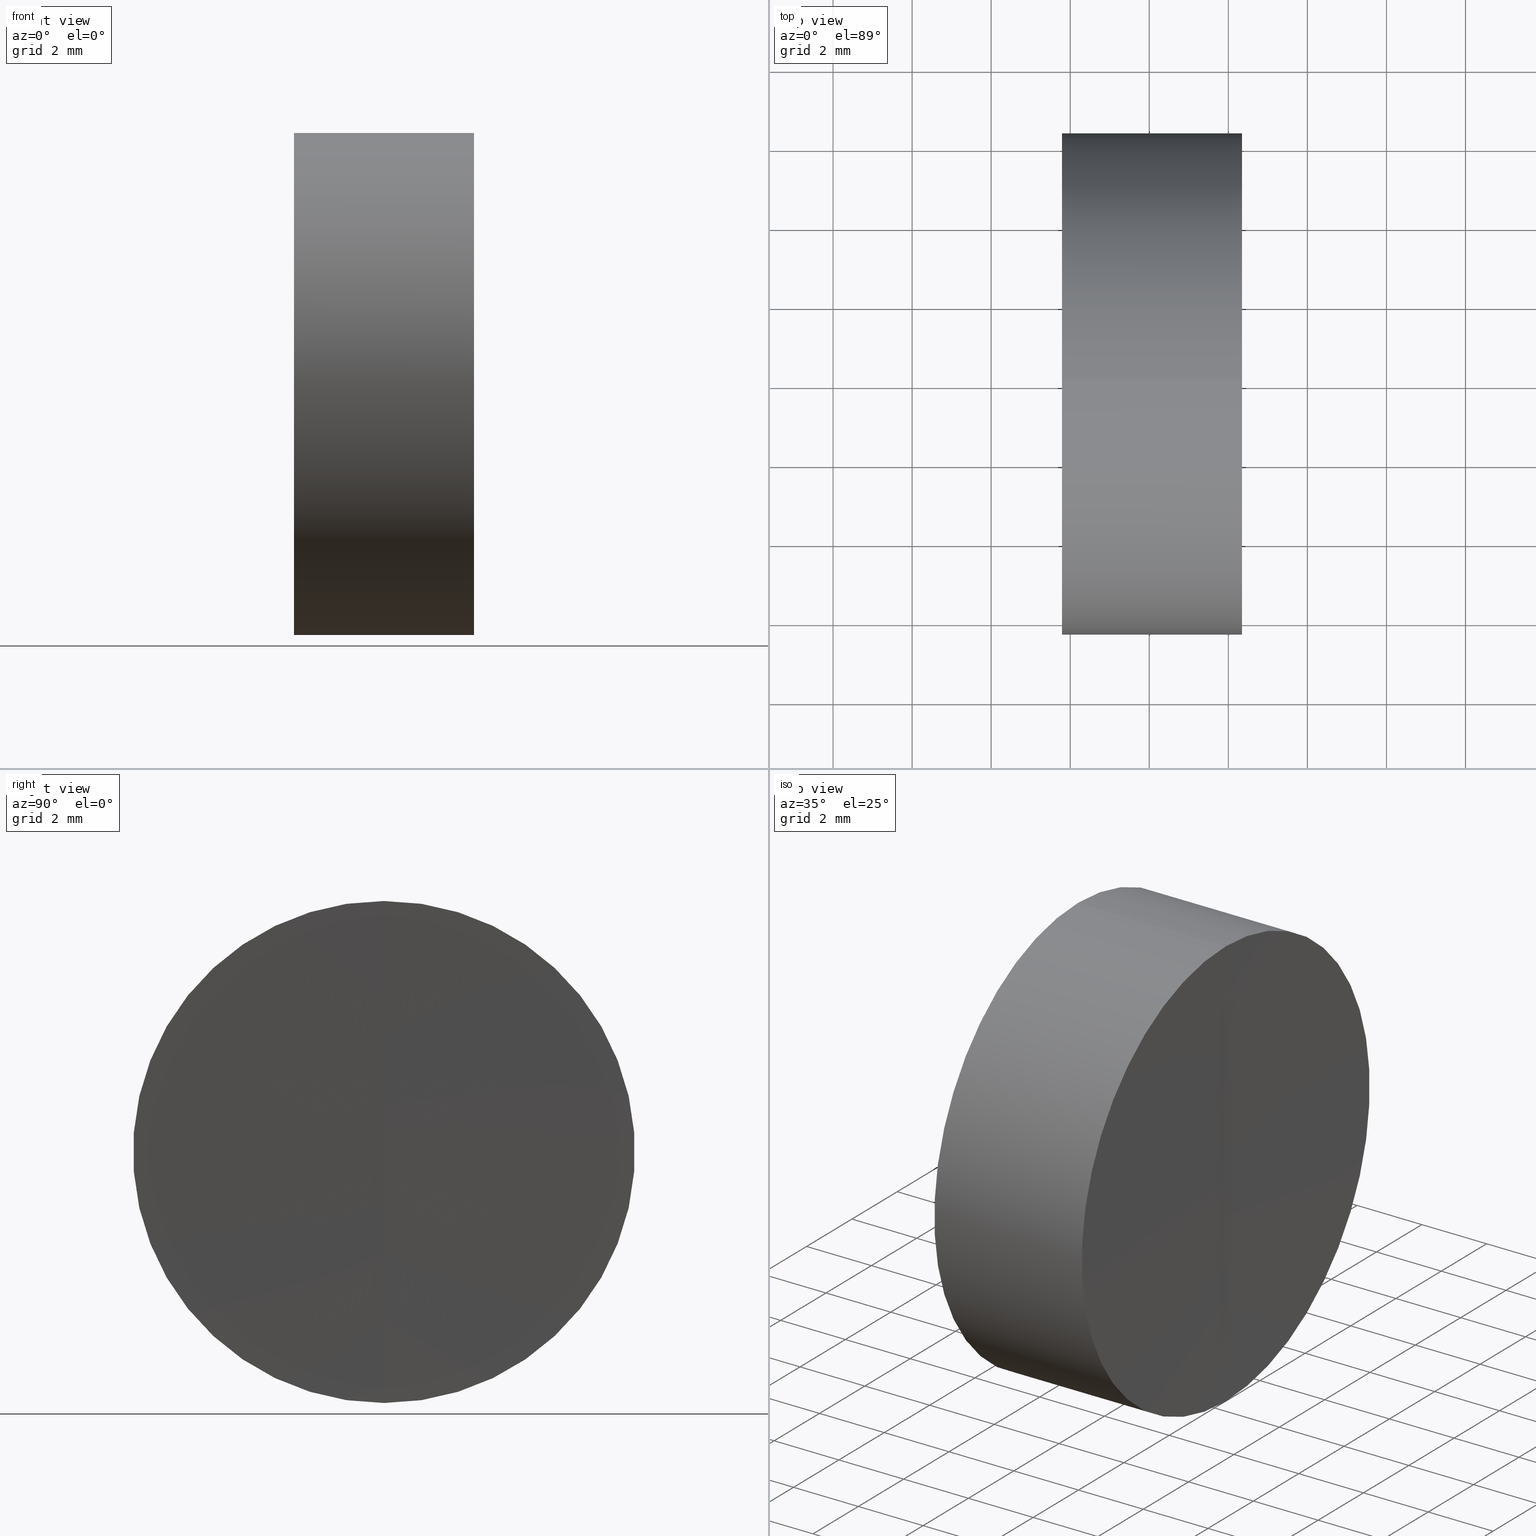
[diagram: canonical four-view strip — front | top / right | iso, engineering-drawing reading convention]
A machine part, canonical four-view strip (front | top / right | iso — engineering-drawing reading convention). The complete STEP part file that produces these views, byte-faithful:
ISO-10303-21;
HEADER;
FILE_DESCRIPTION (( 'STEP AP214' ),
    '1' );
FILE_NAME ('145192.STEP',
    '2019-06-13T05:52:01',
    ( 'user' ),
    ( '΢���й�' ),
    'SwSTEP 2.0',
    'SolidWorks 2016',
    '' );
FILE_SCHEMA (( 'AUTOMOTIVE_DESIGN' ));
ENDSEC;

DATA;
#1 = CARTESIAN_POINT ( 'NONE',  ( 230.3461404943394100, 0.0000000000000000000, 0.0000000000000000000 ) ) ;
#2 = DIRECTION ( 'NONE',  ( 0.0000000000000000000, 0.0000000000000000000, 1.000000000000000000 ) ) ;
#3 = ORIENTED_EDGE ( 'NONE', *, *, #257, .F. ) ;
#4 = LINE ( 'NONE', #68, #142 ) ;
#5 = DIRECTION ( 'NONE',  ( -1.000000000000000000, -0.0000000000000000000, -0.0000000000000000000 ) ) ;
#6 = AXIS2_PLACEMENT_3D ( 'NONE', #179, #145, #95 ) ;
#7 = DIRECTION ( 'NONE',  ( 0.0000000000000000000, -1.224646799147353200E-016, 1.000000000000000000 ) ) ;
#8 = PRESENTATION_STYLE_ASSIGNMENT (( #261 ) ) ;
#9 = VERTEX_POINT ( 'NONE', #151 ) ;
#10 = DIRECTION ( 'NONE',  ( 0.0000000000000000000, 0.0000000000000000000, -1.000000000000000000 ) ) ;
#11 =( LENGTH_UNIT ( ) NAMED_UNIT ( * ) SI_UNIT ( .MILLI., .METRE. ) );
#12 = CARTESIAN_POINT ( 'NONE',  ( 225.7919910479895400, 7.776507174585693100E-016, -6.350000000000000500 ) ) ;
#13 = AXIS2_PLACEMENT_3D ( 'NONE', #121, #16, #183 ) ;
#14 = DIRECTION ( 'NONE',  ( 0.0000000000000000000, 1.224646799147353000E-016, -1.000000000000000000 ) ) ;
#15 = DIRECTION ( 'NONE',  ( -1.000000000000000000, -0.0000000000000000000, 1.836970198721029700E-016 ) ) ;
#16 = DIRECTION ( 'NONE',  ( -0.0000000000000000000, 1.000000000000000000, 0.0000000000000000000 ) ) ;
#17 = ORIENTED_EDGE ( 'NONE', *, *, #71, .F. ) ;
#18 = CIRCLE ( 'NONE', #313, 6.350000000000041400 ) ;
#19 = CARTESIAN_POINT ( 'NONE',  ( 230.3461404943394100, 7.776507174585693100E-016, -6.349999999999999600 ) ) ;
#20 = EDGE_CURVE ( 'NONE', #157, #259, #55, .T. ) ;
#21 = EDGE_CURVE ( 'NONE', #259, #157, #195, .T. ) ;
#22 = FACE_OUTER_BOUND ( 'NONE', #28, .T. ) ;
#23 = VERTEX_POINT ( 'NONE', #173 ) ;
#24 = SPHERICAL_SURFACE ( 'NONE', #74, 372.6999999999999900 ) ;
#25 = STYLED_ITEM ( 'NONE', ( #301 ), #345 ) ;
#26 = ORIENTED_EDGE ( 'NONE', *, *, #317, .F. ) ;
#27 = AXIS2_PLACEMENT_3D ( 'NONE', #268, #120, #103 ) ;
#28 = EDGE_LOOP ( 'NONE', ( #127, #89, #242 ) ) ;
#29 = CARTESIAN_POINT ( 'NONE',  ( 226.5920414512665400, 0.0000000000000000000, -3.135096722806400500E-015 ) ) ;
#30 = EDGE_LOOP ( 'NONE', ( #164, #201, #165 ) ) ;
#31 = CARTESIAN_POINT ( 'NONE',  ( 228.0920414512665700, 0.0000000000000000000, 1.567546985920209400E-015 ) ) ;
#32 = CARTESIAN_POINT ( 'NONE',  ( 253.6920414512665600, 0.0000000000000000000, -9.169884016334362900E-022 ) ) ;
#33 = DIRECTION ( 'NONE',  ( 1.878145495644168800E-016, 0.0000000000000000000, 1.000000000000000000 ) ) ;
#34 = FILL_AREA_STYLE ('',( #35 ) ) ;
#35 = FILL_AREA_STYLE_COLOUR ( '', #216 ) ;
#36 = PRODUCT ( '145192', '145192', '', ( #288 ) ) ;
#37 = SPHERICAL_SURFACE ( 'NONE', #6, 25.59999999999998400 ) ;
#38 = ORIENTED_EDGE ( 'NONE', *, *, #329, .T. ) ;
#39 = CARTESIAN_POINT ( 'NONE',  ( 602.9920414512665700, 0.0000000000000000000, 0.0000000000000000000 ) ) ;
#40 = CIRCLE ( 'NONE', #171, 25.60000000000001900 ) ;
#41 = AXIS2_PLACEMENT_3D ( 'NONE', #298, #122, #33 ) ;
#42 = PRODUCT_DEFINITION_CONTEXT ( 'detailed design', #133, 'design' ) ;
#43 = DIRECTION ( 'NONE',  ( 0.0000000000000000000, 0.0000000000000000000, 1.000000000000000000 ) ) ;
#44 = DIRECTION ( 'NONE',  ( 0.0000000000000000000, 0.0000000000000000000, 1.000000000000000000 ) ) ;
#45 = DIRECTION ( 'NONE',  ( -1.000000000000000000, -0.0000000000000000000, -0.0000000000000000000 ) ) ;
#46 = DIRECTION ( 'NONE',  ( 0.0000000000000000000, 0.0000000000000000000, -1.000000000000000000 ) ) ;
#47 = CARTESIAN_POINT ( 'NONE',  ( 228.8920918545435900, 7.776507174585745400E-016, -6.350000000000084900 ) ) ;
#48 = ORIENTED_EDGE ( 'NONE', *, *, #194, .T. ) ;
#49 = AXIS2_PLACEMENT_3D ( 'NONE', #167, #159, #113 ) ;
#50 = AXIS2_PLACEMENT_3D ( 'NONE', #326, #140, #10 ) ;
#51 = ORIENTED_EDGE ( 'NONE', *, *, #20, .F. ) ;
#52 = AXIS2_PLACEMENT_3D ( 'NONE', #300, #119, #271 ) ;
#53 = ADVANCED_FACE ( 'NONE', ( #246 ), #233, .F. ) ;
#54 = EDGE_LOOP ( 'NONE', ( #26, #169, #181 ) ) ;
#55 = CIRCLE ( 'NONE', #309, 6.349999999999999600 ) ;
#56 = APPLICATION_CONTEXT ( 'automotive_design' ) ;
#57 = CARTESIAN_POINT ( 'NONE',  ( 253.6920414512665600, 0.0000000000000000000, -9.169884016334362900E-022 ) ) ;
#58 = EDGE_LOOP ( 'NONE', ( #51, #108, #137 ) ) ;
#59 = FACE_OUTER_BOUND ( 'NONE', #78, .T. ) ;
#60 = SURFACE_STYLE_USAGE ( .BOTH. , #244 ) ;
#61 = CIRCLE ( 'NONE', #112, 25.59999999999999100 ) ;
#62 = EDGE_CURVE ( 'NONE', #262, #322, #4, .T. ) ;
#63 = CARTESIAN_POINT ( 'NONE',  ( 228.8920918545435900, 0.0000000000000000000, 0.0000000000000000000 ) ) ;
#64 = CARTESIAN_POINT ( 'NONE',  ( 225.7919910479895400, 7.776507174585746400E-016, -6.350000000000048500 ) ) ;
#65 = FILL_AREA_STYLE_COLOUR ( '', #239 ) ;
#66 = CARTESIAN_POINT ( 'NONE',  ( 602.9920414512665700, 0.0000000000000000000, 0.0000000000000000000 ) ) ;
#67 = ORIENTED_EDGE ( 'NONE', *, *, #98, .F. ) ;
#68 = CARTESIAN_POINT ( 'NONE',  ( -0.8160621761658051200, 7.776507174585743400E-016, -6.350000000000041400 ) ) ;
#69 = DIRECTION ( 'NONE',  ( -0.0000000000000000000, 1.000000000000000000, 1.224646799147353200E-016 ) ) ;
#70 = DIRECTION ( 'NONE',  ( -0.0000000000000000000, -1.000000000000000000, -0.0000000000000000000 ) ) ;
#71 = EDGE_CURVE ( 'NONE', #259, #9, #323, .T. ) ;
#72 = SURFACE_STYLE_FILL_AREA ( #34 ) ;
#73 = CIRCLE ( 'NONE', #198, 6.350000000000001400 ) ;
#74 = AXIS2_PLACEMENT_3D ( 'NONE', #203, #292, #250 ) ;
#75 = MANIFOLD_SOLID_BREP ( '��ת3', #347 ) ;
#76 = ORIENTED_EDGE ( 'NONE', *, *, #267, .F. ) ;
#77 = SPHERICAL_SURFACE ( 'NONE', #279, 25.60000000000001900 ) ;
#78 = EDGE_LOOP ( 'NONE', ( #232, #269, #147, #97 ) ) ;
#79 = SURFACE_SIDE_STYLE ('',( #241 ) ) ;
#80 = PRODUCT_DEFINITION ( 'δ֪', '', #254, #42 ) ;
#81 =( LENGTH_UNIT ( ) NAMED_UNIT ( * ) SI_UNIT ( .MILLI., .METRE. ) );
#82 =( GEOMETRIC_REPRESENTATION_CONTEXT ( 3 ) GLOBAL_UNCERTAINTY_ASSIGNED_CONTEXT ( ( #163 ) ) GLOBAL_UNIT_ASSIGNED_CONTEXT ( ( #154, #335, #253 ) ) REPRESENTATION_CONTEXT ( 'NONE', 'WORKASPACE' ) );
#83 = DIRECTION ( 'NONE',  ( 0.0000000000000000000, 1.224646799147353200E-016, -1.000000000000000000 ) ) ;
#84 = ORIENTED_EDGE ( 'NONE', *, *, #238, .F. ) ;
#85 = FACE_OUTER_BOUND ( 'NONE', #204, .T. ) ;
#86 = CARTESIAN_POINT ( 'NONE',  ( 200.9920414512665400, 0.0000000000000000000, -9.169891744871357800E-022 ) ) ;
#87 = APPLICATION_PROTOCOL_DEFINITION ( 'draft international standard', 'automotive_design', 1998, #56 ) ;
#88 = CARTESIAN_POINT ( 'NONE',  ( 225.7919910479895400, 0.0000000000000000000, -4.162722405629622800E-014 ) ) ;
#89 = ORIENTED_EDGE ( 'NONE', *, *, #267, .T. ) ;
#90 = SURFACE_STYLE_FILL_AREA ( #172 ) ;
#91 = DIRECTION ( 'NONE',  ( -1.000000000000000000, -0.0000000000000000000, 1.836970198721029700E-016 ) ) ;
#92 = AXIS2_PLACEMENT_3D ( 'NONE', #102, #70, #46 ) ;
#93 =( NAMED_UNIT ( * ) PLANE_ANGLE_UNIT ( ) SI_UNIT ( $, .RADIAN. ) );
#94 = CARTESIAN_POINT ( 'NONE',  ( -0.8160621761658027900, 0.0000000000000000000, 6.350000000000041400 ) ) ;
#95 = DIRECTION ( 'NONE',  ( 0.0000000000000000000, 0.0000000000000000000, 1.000000000000000000 ) ) ;
#96 = CARTESIAN_POINT ( 'NONE',  ( 230.3461404943394100, 0.0000000000000000000, 6.349999999999999600 ) ) ;
#97 = ORIENTED_EDGE ( 'NONE', *, *, #214, .F. ) ;
#98 = EDGE_CURVE ( 'NONE', #262, #162, #210, .T. ) ;
#99 = ORIENTED_EDGE ( 'NONE', *, *, #21, .T. ) ;
#100 = DIRECTION ( 'NONE',  ( 0.0000000000000000000, 1.000000000000000000, 0.0000000000000000000 ) ) ;
#101 =( GEOMETRIC_REPRESENTATION_CONTEXT ( 3 ) GLOBAL_UNCERTAINTY_ASSIGNED_CONTEXT ( ( #124 ) ) GLOBAL_UNIT_ASSIGNED_CONTEXT ( ( #270, #93, #297 ) ) REPRESENTATION_CONTEXT ( 'NONE', 'WORKASPACE' ) );
#102 = CARTESIAN_POINT ( 'NONE',  ( 602.9920414512665700, 0.0000000000000000000, 0.0000000000000000000 ) ) ;
#103 = DIRECTION ( 'NONE',  ( 1.878145495644168800E-016, 0.0000000000000000000, 1.000000000000000000 ) ) ;
#104 = SPHERICAL_SURFACE ( 'NONE', #188, 25.59999999999999100 ) ;
#105 = EDGE_CURVE ( 'NONE', #226, #322, #40, .T. ) ;
#106 = LINE ( 'NONE', #200, #283 ) ;
#107 = ADVANCED_FACE ( 'NONE', ( #59 ), #265, .T. ) ;
#108 = ORIENTED_EDGE ( 'NONE', *, *, #317, .T. ) ;
#109 = AXIS2_PLACEMENT_3D ( 'NONE', #251, #69, #227 ) ;
#110 = ORIENTED_EDGE ( 'NONE', *, *, #62, .F. ) ;
#111 = EDGE_LOOP ( 'NONE', ( #129, #223, #280 ) ) ;
#112 = AXIS2_PLACEMENT_3D ( 'NONE', #321, #247, #83 ) ;
#113 = DIRECTION ( 'NONE',  ( 1.000000000000000000, 0.0000000000000000000, 0.0000000000000000000 ) ) ;
#114 = SPHERICAL_SURFACE ( 'NONE', #13, 25.60000000000001900 ) ;
#115 = PRESENTATION_STYLE_ASSIGNMENT (( #266 ) ) ;
#116 = DIRECTION ( 'NONE',  ( 0.0000000000000000000, 0.0000000000000000000, 1.000000000000000000 ) ) ;
#117 = CIRCLE ( 'NONE', #143, 372.6999999999999900 ) ;
#118 = MECHANICAL_DESIGN_GEOMETRIC_PRESENTATION_REPRESENTATION (  '', ( #25 ), #101 ) ;
#119 = DIRECTION ( 'NONE',  ( 0.0000000000000000000, -1.000000000000000000, 0.0000000000000000000 ) ) ;
#120 = DIRECTION ( 'NONE',  ( -1.000000000000000000, -0.0000000000000000000, 1.836970198721029700E-016 ) ) ;
#121 = CARTESIAN_POINT ( 'NONE',  ( 200.9920414512665400, 0.0000000000000000000, -9.169891744871357800E-022 ) ) ;
#122 = DIRECTION ( 'NONE',  ( -1.000000000000000000, -0.0000000000000000000, 1.836970198721029700E-016 ) ) ;
#123 = CIRCLE ( 'NONE', #290, 6.350000000000041400 ) ;
#124 = UNCERTAINTY_MEASURE_WITH_UNIT (LENGTH_MEASURE( 1.000000000000000100E-005 ), #270, 'distance_accuracy_value', 'NONE');
#125 = EDGE_CURVE ( 'NONE', #141, #322, #18, .T. ) ;
#126 = DIRECTION ( 'NONE',  ( -0.0000000000000000000, -1.000000000000000000, -0.0000000000000000000 ) ) ;
#127 = ORIENTED_EDGE ( 'NONE', *, *, #190, .T. ) ;
#128 = SHAPE_DEFINITION_REPRESENTATION ( #168, #230 ) ;
#129 = ORIENTED_EDGE ( 'NONE', *, *, #131, .F. ) ;
#130 = FACE_OUTER_BOUND ( 'NONE', #30, .T. ) ;
#131 = EDGE_CURVE ( 'NONE', #304, #162, #61, .T. ) ;
#132 = EDGE_LOOP ( 'NONE', ( #17, #99, #334, #276 ) ) ;
#133 = APPLICATION_CONTEXT ( 'automotive_design' ) ;
#134 = DIRECTION ( 'NONE',  ( 0.0000000000000000000, 0.0000000000000000000, 1.000000000000000000 ) ) ;
#135 = PRODUCT_RELATED_PRODUCT_CATEGORY ( 'part', '', ( #36 ) ) ;
#136 = FACE_OUTER_BOUND ( 'NONE', #197, .T. ) ;
#137 = ORIENTED_EDGE ( 'NONE', *, *, #285, .F. ) ;
#138 = CYLINDRICAL_SURFACE ( 'NONE', #27, 6.350000000000041400 ) ;
#139 = SURFACE_SIDE_STYLE ('',( #90 ) ) ;
#140 = DIRECTION ( 'NONE',  ( 0.0000000000000000000, -1.000000000000000000, 0.0000000000000000000 ) ) ;
#141 = VERTEX_POINT ( 'NONE', #248 ) ;
#142 = VECTOR ( 'NONE', #205, 1000.000000000000000 ) ;
#143 = AXIS2_PLACEMENT_3D ( 'NONE', #66, #225, #44 ) ;
#144 =( NAMED_UNIT ( * ) PLANE_ANGLE_UNIT ( ) SI_UNIT ( $, .RADIAN. ) );
#145 = DIRECTION ( 'NONE',  ( 0.0000000000000000000, 1.000000000000000000, 0.0000000000000000000 ) ) ;
#146 = EDGE_CURVE ( 'NONE', #9, #23, #73, .T. ) ;
#147 = ORIENTED_EDGE ( 'NONE', *, *, #190, .F. ) ;
#148 = DIRECTION ( 'NONE',  ( -1.000000000000000000, -0.0000000000000000000, -0.0000000000000000000 ) ) ;
#149 = FACE_OUTER_BOUND ( 'NONE', #294, .T. ) ;
#150 = UNCERTAINTY_MEASURE_WITH_UNIT (LENGTH_MEASURE( 1.000000000000000100E-005 ), #11, 'distance_accuracy_value', 'NONE');
#151 = CARTESIAN_POINT ( 'NONE',  ( 228.8920918545435900, 7.776507174585674400E-016, -6.349999999999985400 ) ) ;
#152 = AXIS2_PLACEMENT_3D ( 'NONE', #184, #148, #186 ) ;
#153 = DIRECTION ( 'NONE',  ( 0.0000000000000000000, 0.0000000000000000000, 1.000000000000000000 ) ) ;
#154 =( LENGTH_UNIT ( ) NAMED_UNIT ( * ) SI_UNIT ( .MILLI., .METRE. ) );
#155 = ADVANCED_FACE ( 'NONE', ( #85 ), #338, .T. ) ;
#156 = MECHANICAL_DESIGN_GEOMETRIC_PRESENTATION_REPRESENTATION (  '', ( #320 ), #82 ) ;
#157 = VERTEX_POINT ( 'NONE', #96 ) ;
#158 = CIRCLE ( 'NONE', #109, 25.59999999999998400 ) ;
#159 = DIRECTION ( 'NONE',  ( 0.0000000000000000000, 0.0000000000000000000, 1.000000000000000000 ) ) ;
#160 = AXIS2_PLACEMENT_3D ( 'NONE', #57, #100, #291 ) ;
#161 = ORIENTED_EDGE ( 'NONE', *, *, #189, .T. ) ;
#162 = VERTEX_POINT ( 'NONE', #255 ) ;
#163 = UNCERTAINTY_MEASURE_WITH_UNIT (LENGTH_MEASURE( 1.000000000000000100E-005 ), #154, 'distance_accuracy_value', 'NONE');
#164 = ORIENTED_EDGE ( 'NONE', *, *, #329, .F. ) ;
#165 = ORIENTED_EDGE ( 'NONE', *, *, #257, .T. ) ;
#166 = APPLICATION_PROTOCOL_DEFINITION ( 'draft international standard', 'automotive_design', 1998, #133 ) ;
#167 = CARTESIAN_POINT ( 'NONE',  ( 0.0000000000000000000, 0.0000000000000000000, 0.0000000000000000000 ) ) ;
#168 = PRODUCT_DEFINITION_SHAPE ( 'NONE', 'NONE',  #80 ) ;
#169 = ORIENTED_EDGE ( 'NONE', *, *, #21, .F. ) ;
#170 = ORIENTED_EDGE ( 'NONE', *, *, #194, .F. ) ;
#171 = AXIS2_PLACEMENT_3D ( 'NONE', #86, #185, #7 ) ;
#172 = FILL_AREA_STYLE ('',( #65 ) ) ;
#173 = CARTESIAN_POINT ( 'NONE',  ( 228.8920918545435900, 0.0000000000000000000, 6.349999999999985400 ) ) ;
#174 = EDGE_LOOP ( 'NONE', ( #170, #282, #67 ) ) ;
#175 = DIRECTION ( 'NONE',  ( -1.000000000000000000, -0.0000000000000000000, 1.836970198721029700E-016 ) ) ;
#176 = DIRECTION ( 'NONE',  ( 0.0000000000000000000, 0.0000000000000000000, -1.000000000000000000 ) ) ;
#177 = FILL_AREA_STYLE_COLOUR ( '', #273 ) ;
#178 = DIRECTION ( 'NONE',  ( 0.0000000000000000000, 0.0000000000000000000, 1.000000000000000000 ) ) ;
#179 = CARTESIAN_POINT ( 'NONE',  ( 253.6920414512665600, 0.0000000000000000000, -9.169884016334362900E-022 ) ) ;
#180 = VERTEX_POINT ( 'NONE', #31 ) ;
#181 = ORIENTED_EDGE ( 'NONE', *, *, #285, .T. ) ;
#182 = PRESENTATION_LAYER_ASSIGNMENT (  '', '', ( #25 ) ) ;
#183 = DIRECTION ( 'NONE',  ( 0.0000000000000000000, 0.0000000000000000000, 1.000000000000000000 ) ) ;
#184 = CARTESIAN_POINT ( 'NONE',  ( 225.7919910479895400, 0.0000000000000000000, 0.0000000000000000000 ) ) ;
#185 = DIRECTION ( 'NONE',  ( 2.249639673992786400E-032, 1.000000000000000000, 1.224646799147353200E-016 ) ) ;
#186 = DIRECTION ( 'NONE',  ( 0.0000000000000000000, 0.0000000000000000000, 1.000000000000000000 ) ) ;
#187 = DIRECTION ( 'NONE',  ( -1.000000000000000000, -0.0000000000000000000, -0.0000000000000000000 ) ) ;
#188 = AXIS2_PLACEMENT_3D ( 'NONE', #245, #126, #176 ) ;
#189 = EDGE_CURVE ( 'NONE', #262, #304, #344, .T. ) ;
#190 = EDGE_CURVE ( 'NONE', #23, #9, #260, .T. ) ;
#191 = VECTOR ( 'NONE', #237, 1000.000000000000000 ) ;
#192 = MECHANICAL_DESIGN_GEOMETRIC_PRESENTATION_REPRESENTATION (  '', ( #193 ), #211 ) ;
#193 = STYLED_ITEM ( 'NONE', ( #8 ), #230 ) ;
#194 = EDGE_CURVE ( 'NONE', #304, #262, #286, .T. ) ;
#195 = CIRCLE ( 'NONE', #224, 6.349999999999999600 ) ;
#196 =( NAMED_UNIT ( * ) SI_UNIT ( $, .STERADIAN. ) SOLID_ANGLE_UNIT ( ) );
#197 = EDGE_LOOP ( 'NONE', ( #275, #38, #312 ) ) ;
#198 = AXIS2_PLACEMENT_3D ( 'NONE', #331, #219, #116 ) ;
#199 = DIRECTION ( 'NONE',  ( -0.0000000000000000000, -1.000000000000000000, -0.0000000000000000000 ) ) ;
#200 = CARTESIAN_POINT ( 'NONE',  ( 225.7919910479895400, 0.0000000000000000000, 6.350000000000000500 ) ) ;
#201 = ORIENTED_EDGE ( 'NONE', *, *, #105, .T. ) ;
#202 = FACE_OUTER_BOUND ( 'NONE', #132, .T. ) ;
#203 = CARTESIAN_POINT ( 'NONE',  ( 602.9920414512665700, 0.0000000000000000000, 0.0000000000000000000 ) ) ;
#204 = EDGE_LOOP ( 'NONE', ( #48, #209, #217, #84 ) ) ;
#205 = DIRECTION ( 'NONE',  ( -1.000000000000000000, -0.0000000000000000000, 1.836970198721029700E-016 ) ) ;
#206 = DIRECTION ( 'NONE',  ( 0.0000000000000000000, -1.000000000000000000, -1.224646799147353200E-016 ) ) ;
#207 = CARTESIAN_POINT ( 'NONE',  ( 228.8920918545435900, 0.0000000000000000000, -4.219670333576331500E-014 ) ) ;
#208 = CARTESIAN_POINT ( 'NONE',  ( 230.2920414512666400, 0.0000000000000000000, -2.282129310211092400E-014 ) ) ;
#209 = ORIENTED_EDGE ( 'NONE', *, *, #62, .T. ) ;
#210 = CIRCLE ( 'NONE', #287, 25.59999999999999100 ) ;
#211 =( GEOMETRIC_REPRESENTATION_CONTEXT ( 3 ) GLOBAL_UNCERTAINTY_ASSIGNED_CONTEXT ( ( #264 ) ) GLOBAL_UNIT_ASSIGNED_CONTEXT ( ( #81, #319, #236 ) ) REPRESENTATION_CONTEXT ( 'NONE', 'WORKASPACE' ) );
#212 = CARTESIAN_POINT ( 'NONE',  ( 225.7919910479895400, 0.0000000000000000000, -4.162722405629622800E-014 ) ) ;
#213 = DIRECTION ( 'NONE',  ( 0.0000000000000000000, 0.0000000000000000000, 1.000000000000000000 ) ) ;
#214 = EDGE_CURVE ( 'NONE', #157, #23, #106, .T. ) ;
#215 = LINE ( 'NONE', #94, #310 ) ;
#216 = COLOUR_RGB ( '',1.000000000000000000, 1.000000000000000000, 1.000000000000000000 ) ;
#217 = ORIENTED_EDGE ( 'NONE', *, *, #125, .F. ) ;
#218 = SPHERICAL_SURFACE ( 'NONE', #160, 25.59999999999998400 ) ;
#219 = DIRECTION ( 'NONE',  ( -1.000000000000000000, -0.0000000000000000000, -0.0000000000000000000 ) ) ;
#220 = AXIS2_PLACEMENT_3D ( 'NONE', #221, #243, #213 ) ;
#221 = CARTESIAN_POINT ( 'NONE',  ( 228.8920918545435900, 0.0000000000000000000, -4.219670333576331500E-014 ) ) ;
#222 = ADVANCED_FACE ( 'NONE', ( #234 ), #24, .F. ) ;
#223 = ORIENTED_EDGE ( 'NONE', *, *, #189, .F. ) ;
#224 = AXIS2_PLACEMENT_3D ( 'NONE', #272, #5, #2 ) ;
#225 = DIRECTION ( 'NONE',  ( 0.0000000000000000000, 1.000000000000000000, -0.0000000000000000000 ) ) ;
#226 = VERTEX_POINT ( 'NONE', #29 ) ;
#227 = DIRECTION ( 'NONE',  ( 0.0000000000000000000, -1.224646799147353200E-016, 1.000000000000000000 ) ) ;
#228 = CARTESIAN_POINT ( 'NONE',  ( 253.6920414512665600, 0.0000000000000000000, -9.169884016334362900E-022 ) ) ;
#229 = DIRECTION ( 'NONE',  ( 0.0000000000000000000, 0.0000000000000000000, 1.000000000000000000 ) ) ;
#230 = ADVANCED_BREP_SHAPE_REPRESENTATION ( '145192', ( #345, #75, #49 ), #284 ) ;
#231 = ADVANCED_FACE ( 'NONE', ( #149 ), #218, .T. ) ;
#232 = ORIENTED_EDGE ( 'NONE', *, *, #20, .T. ) ;
#233 = SPHERICAL_SURFACE ( 'NONE', #325, 25.59999999999999100 ) ;
#234 = FACE_OUTER_BOUND ( 'NONE', #54, .T. ) ;
#235 = FILL_AREA_STYLE ('',( #177 ) ) ;
#236 =( NAMED_UNIT ( * ) SI_UNIT ( $, .STERADIAN. ) SOLID_ANGLE_UNIT ( ) );
#237 = DIRECTION ( 'NONE',  ( -1.000000000000000000, -0.0000000000000000000, -0.0000000000000000000 ) ) ;
#238 = EDGE_CURVE ( 'NONE', #304, #141, #215, .T. ) ;
#239 = COLOUR_RGB ( '',1.000000000000000000, 1.000000000000000000, 1.000000000000000000 ) ;
#240 = DIRECTION ( 'NONE',  ( -1.000000000000000000, -0.0000000000000000000, -0.0000000000000000000 ) ) ;
#241 = SURFACE_STYLE_FILL_AREA ( #235 ) ;
#242 = ORIENTED_EDGE ( 'NONE', *, *, #340, .F. ) ;
#243 = DIRECTION ( 'NONE',  ( -1.000000000000000000, -0.0000000000000000000, 1.836970198721029700E-016 ) ) ;
#244 = SURFACE_SIDE_STYLE ('',( #72 ) ) ;
#245 = CARTESIAN_POINT ( 'NONE',  ( 253.6920414512665600, 0.0000000000000000000, -9.169884016334362900E-022 ) ) ;
#246 = FACE_OUTER_BOUND ( 'NONE', #174, .T. ) ;
#247 = DIRECTION ( 'NONE',  ( -2.249639673992786400E-032, -1.000000000000000000, -1.224646799147353200E-016 ) ) ;
#248 = CARTESIAN_POINT ( 'NONE',  ( 225.7919910479895400, 0.0000000000000000000, 6.350000000000003200 ) ) ;
#249 = DIRECTION ( 'NONE',  ( 0.0000000000000000000, 0.0000000000000000000, 1.000000000000000000 ) ) ;
#250 = DIRECTION ( 'NONE',  ( 0.0000000000000000000, 0.0000000000000000000, -1.000000000000000000 ) ) ;
#251 = CARTESIAN_POINT ( 'NONE',  ( 253.6920414512665600, 0.0000000000000000000, -9.169884016334362900E-022 ) ) ;
#252 = CLOSED_SHELL ( 'NONE', ( #53, #155, #315, #306, #256, #343 ) ) ;
#253 =( NAMED_UNIT ( * ) SI_UNIT ( $, .STERADIAN. ) SOLID_ANGLE_UNIT ( ) );
#254 = PRODUCT_DEFINITION_FORMATION_WITH_SPECIFIED_SOURCE ( '�κ�', '', #36, .NOT_KNOWN. ) ;
#255 = CARTESIAN_POINT ( 'NONE',  ( 228.0920414512665700, 0.0000000000000000000, 3.135094888828820600E-015 ) ) ;
#256 = ADVANCED_FACE ( 'NONE', ( #289 ), #138, .T. ) ;
#257 = EDGE_CURVE ( 'NONE', #322, #141, #123, .T. ) ;
#258 = CYLINDRICAL_SURFACE ( 'NONE', #152, 6.350000000000000500 ) ;
#259 = VERTEX_POINT ( 'NONE', #19 ) ;
#260 = CIRCLE ( 'NONE', #311, 6.350000000000001400 ) ;
#261 = SURFACE_STYLE_USAGE ( .BOTH. , #79 ) ;
#262 = VERTEX_POINT ( 'NONE', #47 ) ;
#263 = DIRECTION ( 'NONE',  ( -0.0000000000000000000, 1.000000000000000000, 0.0000000000000000000 ) ) ;
#264 = UNCERTAINTY_MEASURE_WITH_UNIT (LENGTH_MEASURE( 1.000000000000000100E-005 ), #81, 'distance_accuracy_value', 'NONE');
#265 = CYLINDRICAL_SURFACE ( 'NONE', #346, 6.350000000000000500 ) ;
#266 = SURFACE_STYLE_USAGE ( .BOTH. , #139 ) ;
#267 = EDGE_CURVE ( 'NONE', #9, #180, #158, .T. ) ;
#268 = CARTESIAN_POINT ( 'NONE',  ( -0.8160621761658039000, 0.0000000000000000000, 0.0000000000000000000 ) ) ;
#269 = ORIENTED_EDGE ( 'NONE', *, *, #71, .T. ) ;
#270 =( LENGTH_UNIT ( ) NAMED_UNIT ( * ) SI_UNIT ( .MILLI., .METRE. ) );
#271 = DIRECTION ( 'NONE',  ( 0.0000000000000000000, 0.0000000000000000000, -1.000000000000000000 ) ) ;
#272 = CARTESIAN_POINT ( 'NONE',  ( 230.3461404943394100, 0.0000000000000000000, 0.0000000000000000000 ) ) ;
#273 = COLOUR_RGB ( '',1.000000000000000000, 1.000000000000000000, 1.000000000000000000 ) ;
#274 = PRESENTATION_LAYER_ASSIGNMENT (  '', '', ( #193 ) ) ;
#275 = ORIENTED_EDGE ( 'NONE', *, *, #105, .F. ) ;
#276 = ORIENTED_EDGE ( 'NONE', *, *, #146, .F. ) ;
#277 = ADVANCED_FACE ( 'NONE', ( #295 ), #314, .F. ) ;
#278 = ORIENTED_EDGE ( 'NONE', *, *, #146, .T. ) ;
#279 = AXIS2_PLACEMENT_3D ( 'NONE', #303, #330, #249 ) ;
#280 = ORIENTED_EDGE ( 'NONE', *, *, #98, .T. ) ;
#281 = ADVANCED_FACE ( 'NONE', ( #202 ), #258, .T. ) ;
#282 = ORIENTED_EDGE ( 'NONE', *, *, #131, .T. ) ;
#283 = VECTOR ( 'NONE', #296, 1000.000000000000000 ) ;
#284 =( GEOMETRIC_REPRESENTATION_CONTEXT ( 3 ) GLOBAL_UNCERTAINTY_ASSIGNED_CONTEXT ( ( #150 ) ) GLOBAL_UNIT_ASSIGNED_CONTEXT ( ( #11, #144, #196 ) ) REPRESENTATION_CONTEXT ( 'NONE', 'WORKASPACE' ) );
#285 = EDGE_CURVE ( 'NONE', #259, #302, #117, .T. ) ;
#286 = CIRCLE ( 'NONE', #220, 6.350000000000042300 ) ;
#287 = AXIS2_PLACEMENT_3D ( 'NONE', #32, #263, #324 ) ;
#288 = PRODUCT_CONTEXT ( 'NONE', #56, 'mechanical' ) ;
#289 = FACE_OUTER_BOUND ( 'NONE', #339, .T. ) ;
#290 = AXIS2_PLACEMENT_3D ( 'NONE', #212, #337, #153 ) ;
#291 = DIRECTION ( 'NONE',  ( 0.0000000000000000000, 0.0000000000000000000, 1.000000000000000000 ) ) ;
#292 = DIRECTION ( 'NONE',  ( -0.0000000000000000000, -1.000000000000000000, -0.0000000000000000000 ) ) ;
#293 = DIRECTION ( 'NONE',  ( 0.0000000000000000000, 0.0000000000000000000, 1.000000000000000000 ) ) ;
#294 = EDGE_LOOP ( 'NONE', ( #76, #278, #342 ) ) ;
#295 = FACE_OUTER_BOUND ( 'NONE', #58, .T. ) ;
#296 = DIRECTION ( 'NONE',  ( -1.000000000000000000, -0.0000000000000000000, -0.0000000000000000000 ) ) ;
#297 =( NAMED_UNIT ( * ) SI_UNIT ( $, .STERADIAN. ) SOLID_ANGLE_UNIT ( ) );
#298 = CARTESIAN_POINT ( 'NONE',  ( -0.8160621761658039000, 0.0000000000000000000, 0.0000000000000000000 ) ) ;
#299 = PRESENTATION_LAYER_ASSIGNMENT (  '', '', ( #320 ) ) ;
#300 = CARTESIAN_POINT ( 'NONE',  ( 200.9920414512665400, 0.0000000000000000000, -9.169891744871357800E-022 ) ) ;
#301 = PRESENTATION_STYLE_ASSIGNMENT (( #60 ) ) ;
#302 = VERTEX_POINT ( 'NONE', #208 ) ;
#303 = CARTESIAN_POINT ( 'NONE',  ( 200.9920414512665400, 0.0000000000000000000, -9.169891744871357800E-022 ) ) ;
#304 = VERTEX_POINT ( 'NONE', #307 ) ;
#305 = CARTESIAN_POINT ( 'NONE',  ( 225.7919910479895400, 0.0000000000000000000, 0.0000000000000000000 ) ) ;
#306 = ADVANCED_FACE ( 'NONE', ( #136 ), #114, .F. ) ;
#307 = CARTESIAN_POINT ( 'NONE',  ( 228.8920918545435900, 0.0000000000000000000, 6.349999999999999600 ) ) ;
#308 = CIRCLE ( 'NONE', #52, 25.60000000000001900 ) ;
#309 = AXIS2_PLACEMENT_3D ( 'NONE', #1, #240, #134 ) ;
#310 = VECTOR ( 'NONE', #91, 1000.000000000000000 ) ;
#311 = AXIS2_PLACEMENT_3D ( 'NONE', #63, #45, #178 ) ;
#312 = ORIENTED_EDGE ( 'NONE', *, *, #125, .T. ) ;
#313 = AXIS2_PLACEMENT_3D ( 'NONE', #88, #15, #293 ) ;
#314 = SPHERICAL_SURFACE ( 'NONE', #92, 372.6999999999999900 ) ;
#315 = ADVANCED_FACE ( 'NONE', ( #130 ), #77, .F. ) ;
#316 = AXIS2_PLACEMENT_3D ( 'NONE', #207, #175, #43 ) ;
#317 = EDGE_CURVE ( 'NONE', #157, #302, #341, .T. ) ;
#318 = CIRCLE ( 'NONE', #50, 25.59999999999998400 ) ;
#319 =( NAMED_UNIT ( * ) PLANE_ANGLE_UNIT ( ) SI_UNIT ( $, .RADIAN. ) );
#320 = STYLED_ITEM ( 'NONE', ( #115 ), #75 ) ;
#321 = CARTESIAN_POINT ( 'NONE',  ( 253.6920414512665600, 0.0000000000000000000, -9.169884016334362900E-022 ) ) ;
#322 = VERTEX_POINT ( 'NONE', #64 ) ;
#323 = LINE ( 'NONE', #12, #191 ) ;
#324 = DIRECTION ( 'NONE',  ( 0.0000000000000000000, 0.0000000000000000000, 1.000000000000000000 ) ) ;
#325 = AXIS2_PLACEMENT_3D ( 'NONE', #228, #199, #328 ) ;
#326 = CARTESIAN_POINT ( 'NONE',  ( 253.6920414512665600, 0.0000000000000000000, -9.169884016334362900E-022 ) ) ;
#327 = ORIENTED_EDGE ( 'NONE', *, *, #238, .T. ) ;
#328 = DIRECTION ( 'NONE',  ( 0.0000000000000000000, 0.0000000000000000000, -1.000000000000000000 ) ) ;
#329 = EDGE_CURVE ( 'NONE', #226, #141, #308, .T. ) ;
#330 = DIRECTION ( 'NONE',  ( -0.0000000000000000000, 1.000000000000000000, 0.0000000000000000000 ) ) ;
#331 = CARTESIAN_POINT ( 'NONE',  ( 228.8920918545435900, 0.0000000000000000000, 0.0000000000000000000 ) ) ;
#332 = AXIS2_PLACEMENT_3D ( 'NONE', #39, #206, #14 ) ;
#333 = FACE_OUTER_BOUND ( 'NONE', #111, .T. ) ;
#334 = ORIENTED_EDGE ( 'NONE', *, *, #214, .T. ) ;
#335 =( NAMED_UNIT ( * ) PLANE_ANGLE_UNIT ( ) SI_UNIT ( $, .RADIAN. ) );
#336 = ADVANCED_FACE ( 'NONE', ( #22 ), #37, .T. ) ;
#337 = DIRECTION ( 'NONE',  ( -1.000000000000000000, -0.0000000000000000000, 1.836970198721029700E-016 ) ) ;
#338 = CYLINDRICAL_SURFACE ( 'NONE', #41, 6.350000000000041400 ) ;
#339 = EDGE_LOOP ( 'NONE', ( #110, #161, #327, #3 ) ) ;
#340 = EDGE_CURVE ( 'NONE', #23, #180, #318, .T. ) ;
#341 = CIRCLE ( 'NONE', #332, 372.6999999999999900 ) ;
#342 = ORIENTED_EDGE ( 'NONE', *, *, #340, .T. ) ;
#343 = ADVANCED_FACE ( 'NONE', ( #333 ), #104, .F. ) ;
#344 = CIRCLE ( 'NONE', #316, 6.350000000000042300 ) ;
#345 = MANIFOLD_SOLID_BREP ( '��ת1', #252 ) ;
#346 = AXIS2_PLACEMENT_3D ( 'NONE', #305, #187, #229 ) ;
#347 = CLOSED_SHELL ( 'NONE', ( #277, #107, #336, #231, #281, #222 ) ) ;
ENDSEC;
END-ISO-10303-21;
